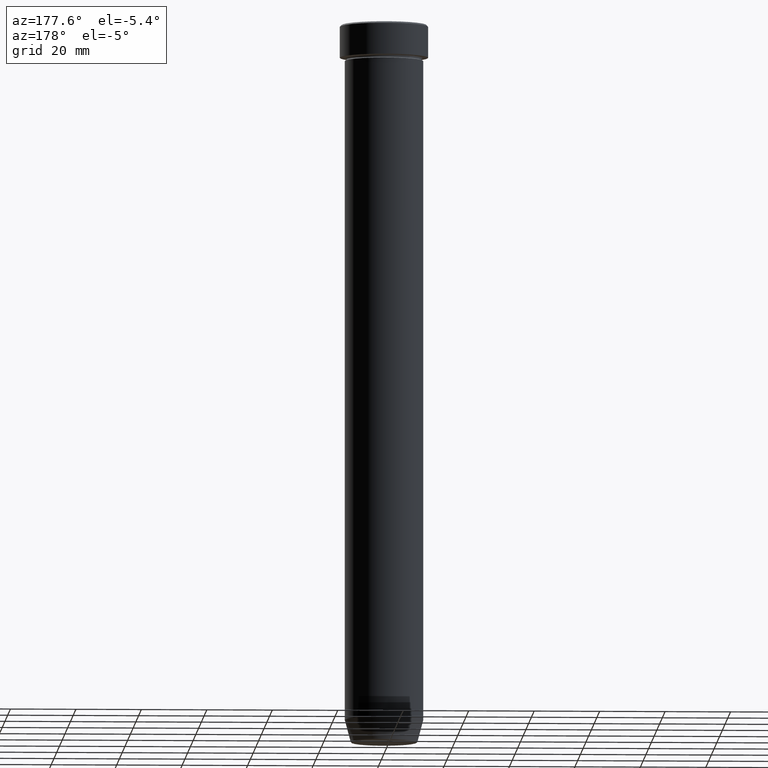
[diagram: clean part render]
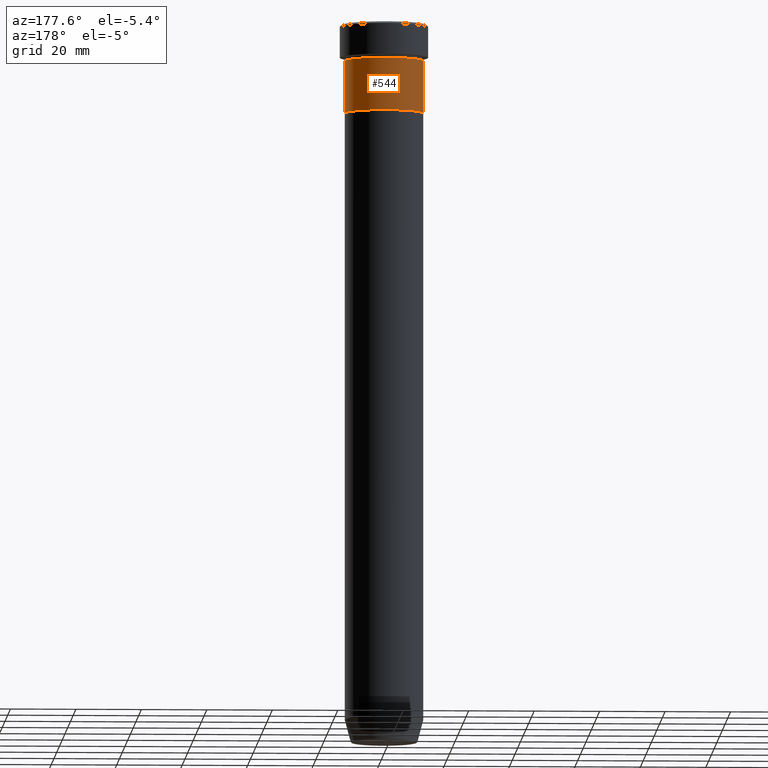
[diagram: same view with one face highlighted and labeled with its STEP entity id]
A machine part, auxiliary view. The second image highlights one B-rep face of the part: STEP entity #544.
In plain terms, the highlighted cylindrical surface (partial cylindrical patch) has radius 12 mm, axis along (-0, -0, 1).
Its self-contained STEP definition (entity closure, byte-faithful):
#31 = EDGE_CURVE ( 'NONE', #478, #272, #513, .T. ) ;
#32 = ORIENTED_EDGE ( 'NONE', *, *, #534, .T. ) ;
#42 = VECTOR ( 'NONE', #212, 1000.000000000000000 ) ;
#48 = EDGE_LOOP ( 'NONE', ( #32, #185, #83, #415 ) ) ;
#54 = CARTESIAN_POINT ( 'NONE',  ( 0.000000000000000000, 0.000000000000000000, -27.00000000000000000 ) ) ;
#68 = CARTESIAN_POINT ( 'NONE',  ( 0.000000000000000000, 0.000000000000000000, -11.00000000000000000 ) ) ;
#83 = ORIENTED_EDGE ( 'NONE', *, *, #31, .F. ) ;
#89 = AXIS2_PLACEMENT_3D ( 'NONE', #68, #213, #167 ) ;
#111 = DIRECTION ( 'NONE',  ( -0.000000000000000000, -0.000000000000000000, 1.000000000000000000 ) ) ;
#124 = VECTOR ( 'NONE', #179, 1000.000000000000000 ) ;
#139 = EDGE_CURVE ( 'NONE', #553, #478, #409, .T. ) ;
#143 = CARTESIAN_POINT ( 'NONE',  ( -12.00000000000000000, 1.469576158976823947E-15, 0.000000000000000000 ) ) ;
#146 = CARTESIAN_POINT ( 'NONE',  ( 12.00000000000000000, 0.000000000000000000, -11.00000000000000000 ) ) ;
#167 = DIRECTION ( 'NONE',  ( 1.000000000000000000, 0.000000000000000000, 0.000000000000000000 ) ) ;
#179 = DIRECTION ( 'NONE',  ( -0.000000000000000000, -0.000000000000000000, 1.000000000000000000 ) ) ;
#185 = ORIENTED_EDGE ( 'NONE', *, *, #317, .T. ) ;
#212 = DIRECTION ( 'NONE',  ( -0.000000000000000000, -0.000000000000000000, 1.000000000000000000 ) ) ;
#213 = DIRECTION ( 'NONE',  ( -0.000000000000000000, -0.000000000000000000, 1.000000000000000000 ) ) ;
#241 = CARTESIAN_POINT ( 'NONE',  ( 0.000000000000000000, 0.000000000000000000, 0.000000000000000000 ) ) ;
#268 = CARTESIAN_POINT ( 'NONE',  ( -12.00000000000000000, 1.469576158976823947E-15, -11.00000000000000000 ) ) ;
#272 = VERTEX_POINT ( 'NONE', #268 ) ;
#283 = FACE_OUTER_BOUND ( 'NONE', #48, .T. ) ;
#295 = AXIS2_PLACEMENT_3D ( 'NONE', #241, #387, #531 ) ;
#317 = EDGE_CURVE ( 'NONE', #383, #272, #456, .T. ) ;
#318 = CARTESIAN_POINT ( 'NONE',  ( -12.00000000000000000, 1.469576158976823947E-15, -27.00000000000000000 ) ) ;
#328 = CIRCLE ( 'NONE', #566, 12.00000000000000000 ) ;
#345 = CARTESIAN_POINT ( 'NONE',  ( 12.00000000000000000, 0.000000000000000000, -27.00000000000000000 ) ) ;
#383 = VERTEX_POINT ( 'NONE', #318 ) ;
#387 = DIRECTION ( 'NONE',  ( -0.000000000000000000, -0.000000000000000000, 1.000000000000000000 ) ) ;
#409 = LINE ( 'NONE', #495, #42 ) ;
#415 = ORIENTED_EDGE ( 'NONE', *, *, #139, .F. ) ;
#423 = DIRECTION ( 'NONE',  ( 1.000000000000000000, 0.000000000000000000, 0.000000000000000000 ) ) ;
#456 = LINE ( 'NONE', #143, #124 ) ;
#477 = CYLINDRICAL_SURFACE ( 'NONE', #295, 12.00000000000000000 ) ;
#478 = VERTEX_POINT ( 'NONE', #146 ) ;
#495 = CARTESIAN_POINT ( 'NONE',  ( 12.00000000000000000, 0.000000000000000000, 0.000000000000000000 ) ) ;
#513 = CIRCLE ( 'NONE', #89, 12.00000000000000000 ) ;
#531 = DIRECTION ( 'NONE',  ( 1.000000000000000000, 0.000000000000000000, 0.000000000000000000 ) ) ;
#534 = EDGE_CURVE ( 'NONE', #553, #383, #328, .T. ) ;
#544 = ADVANCED_FACE ( 'NONE', ( #283 ), #477, .T. ) ;
#553 = VERTEX_POINT ( 'NONE', #345 ) ;
#566 = AXIS2_PLACEMENT_3D ( 'NONE', #54, #111, #423 ) ;